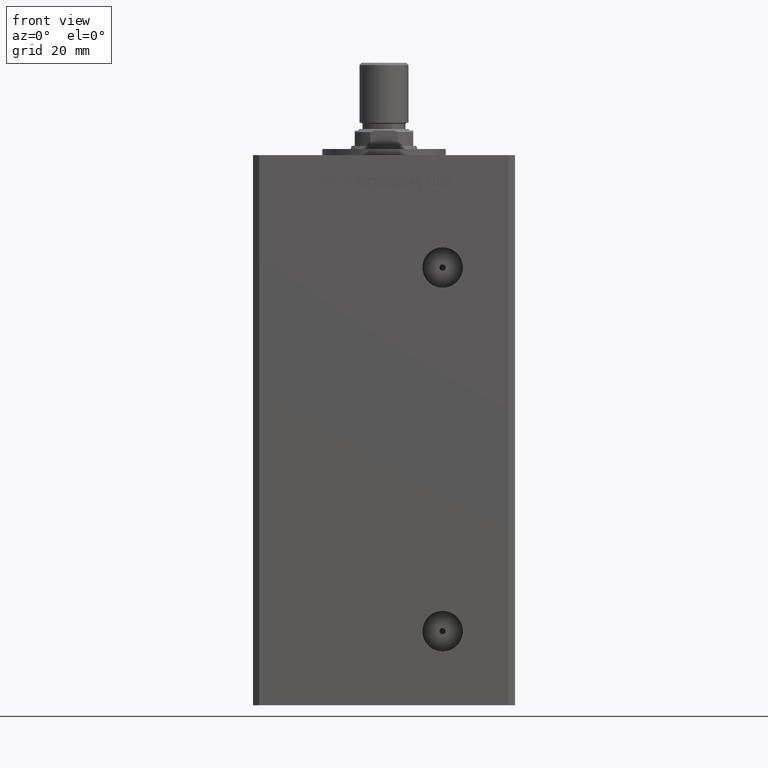
[diagram: clean part render]
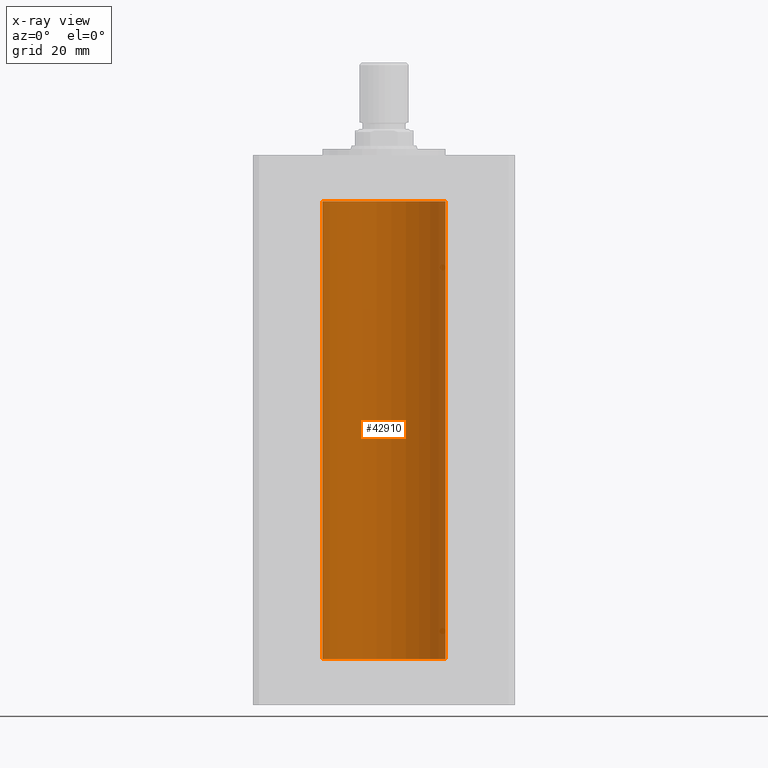
[diagram: x-ray — body ghosted, one internal face saturated and labeled with its STEP entity id]
A machine part, front view, then the same camera in x-ray: the body is ghosted and one INTERNAL B-rep face — a face not visible from any outside direction — is saturated and labeled: STEP entity #42910.
In plain terms, the highlighted cylindrical surface (partial cylindrical patch) has radius 20 mm, axis along (-0, -0, -1).
Its self-contained STEP definition (entity closure, byte-faithful):
#1665 = CYLINDRICAL_SURFACE ( 'NONE', #42015, 20.00000000000000000 ) ;
#3416 = ORIENTED_EDGE ( 'NONE', *, *, #52330, .T. ) ;
#5787 = CARTESIAN_POINT ( 'NONE',  ( -20.00000000000000000, 0.000000000000000000, 0.000000000000000000 ) ) ;
#7361 = LINE ( 'NONE', #23284, #29257 ) ;
#7362 = EDGE_CURVE ( 'NONE', #33207, #21365, #7361, .T. ) ;
#9361 = CARTESIAN_POINT ( 'NONE',  ( -20.00000000000000000, 0.000000000000000000, 148.5000000000000000 ) ) ;
#10090 = DIRECTION ( 'NONE',  ( -0.000000000000000000, -0.000000000000000000, -1.000000000000000000 ) ) ;
#11284 = CIRCLE ( 'NONE', #29909, 20.00000000000000000 ) ;
#11525 = VECTOR ( 'NONE', #25542, 1000.000000000000000 ) ;
#11803 = VERTEX_POINT ( 'NONE', #5787 ) ;
#12917 = ORIENTED_EDGE ( 'NONE', *, *, #32765, .F. ) ;
#17603 = CARTESIAN_POINT ( 'NONE',  ( 0.000000000000000000, 0.000000000000000000, 0.000000000000000000 ) ) ;
#18157 = DIRECTION ( 'NONE',  ( 1.000000000000000000, 0.000000000000000000, 0.000000000000000000 ) ) ;
#21297 = LINE ( 'NONE', #9361, #11525 ) ;
#21365 = VERTEX_POINT ( 'NONE', #28324 ) ;
#22908 = CARTESIAN_POINT ( 'NONE',  ( 0.000000000000000000, 0.000000000000000000, 148.5000000000000000 ) ) ;
#23284 = CARTESIAN_POINT ( 'NONE',  ( 20.00000000000000000, 2.449293598294706513E-15, 148.5000000000000000 ) ) ;
#25542 = DIRECTION ( 'NONE',  ( -0.000000000000000000, -0.000000000000000000, -1.000000000000000000 ) ) ;
#28324 = CARTESIAN_POINT ( 'NONE',  ( 20.00000000000000000, 2.449293598294706513E-15, 0.000000000000000000 ) ) ;
#29257 = VECTOR ( 'NONE', #10090, 1000.000000000000000 ) ;
#29909 = AXIS2_PLACEMENT_3D ( 'NONE', #17603, #33774, #41214 ) ;
#32409 = CARTESIAN_POINT ( 'NONE',  ( 20.00000000000000000, 2.449293598294706513E-15, 148.5000000000000000 ) ) ;
#32765 = EDGE_CURVE ( 'NONE', #21365, #11803, #11284, .T. ) ;
#33207 = VERTEX_POINT ( 'NONE', #32409 ) ;
#33774 = DIRECTION ( 'NONE',  ( -0.000000000000000000, 0.000000000000000000, 1.000000000000000000 ) ) ;
#34013 = FACE_OUTER_BOUND ( 'NONE', #52409, .T. ) ;
#38034 = DIRECTION ( 'NONE',  ( -0.000000000000000000, 0.000000000000000000, 1.000000000000000000 ) ) ;
#40148 = AXIS2_PLACEMENT_3D ( 'NONE', #22908, #38034, #18157 ) ;
#40603 = EDGE_CURVE ( 'NONE', #50488, #11803, #21297, .T. ) ;
#41214 = DIRECTION ( 'NONE',  ( 1.000000000000000000, 0.000000000000000000, 0.000000000000000000 ) ) ;
#41958 = CARTESIAN_POINT ( 'NONE',  ( -20.00000000000000000, 0.000000000000000000, 148.5000000000000000 ) ) ;
#41973 = DIRECTION ( 'NONE',  ( -1.000000000000000000, 0.000000000000000000, 0.000000000000000000 ) ) ;
#42015 = AXIS2_PLACEMENT_3D ( 'NONE', #50171, #46461, #41973 ) ;
#42829 = ORIENTED_EDGE ( 'NONE', *, *, #7362, .F. ) ;
#42910 = ADVANCED_FACE ( 'NONE', ( #34013 ), #1665, .F. ) ;
#46461 = DIRECTION ( 'NONE',  ( -0.000000000000000000, -0.000000000000000000, -1.000000000000000000 ) ) ;
#49426 = ORIENTED_EDGE ( 'NONE', *, *, #40603, .T. ) ;
#50171 = CARTESIAN_POINT ( 'NONE',  ( 0.000000000000000000, 0.000000000000000000, 148.5000000000000000 ) ) ;
#50488 = VERTEX_POINT ( 'NONE', #41958 ) ;
#51148 = CIRCLE ( 'NONE', #40148, 20.00000000000000000 ) ;
#52330 = EDGE_CURVE ( 'NONE', #33207, #50488, #51148, .T. ) ;
#52409 = EDGE_LOOP ( 'NONE', ( #42829, #3416, #49426, #12917 ) ) ;